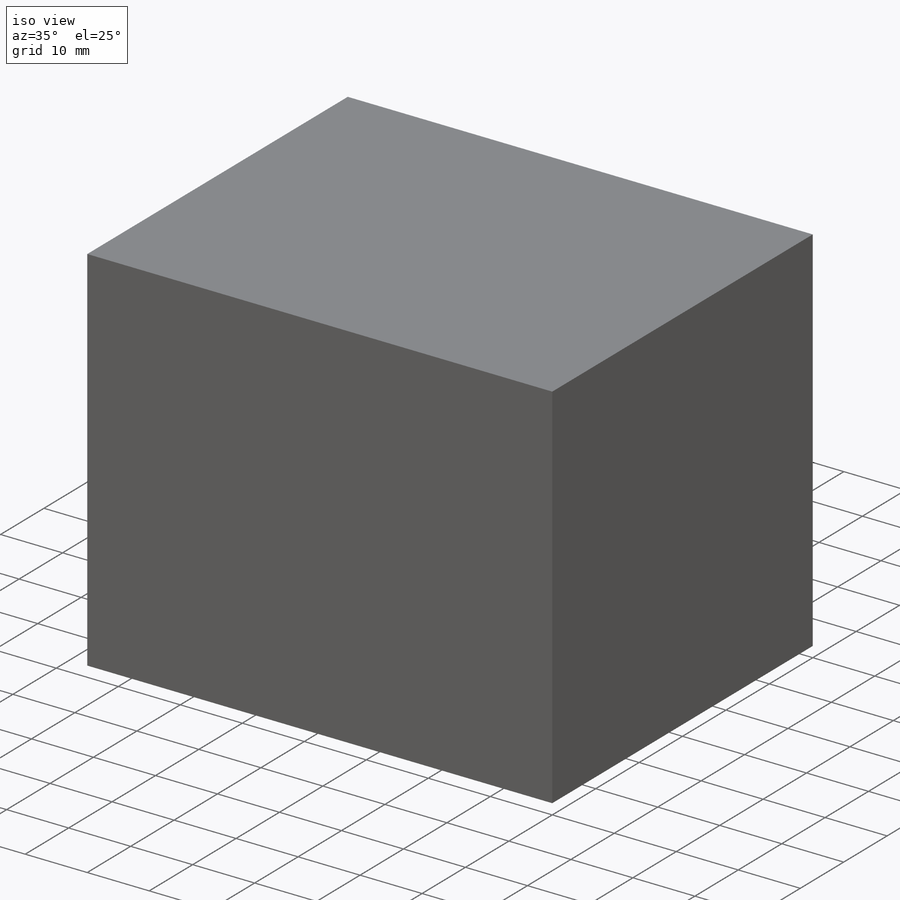
[diagram: iso view]
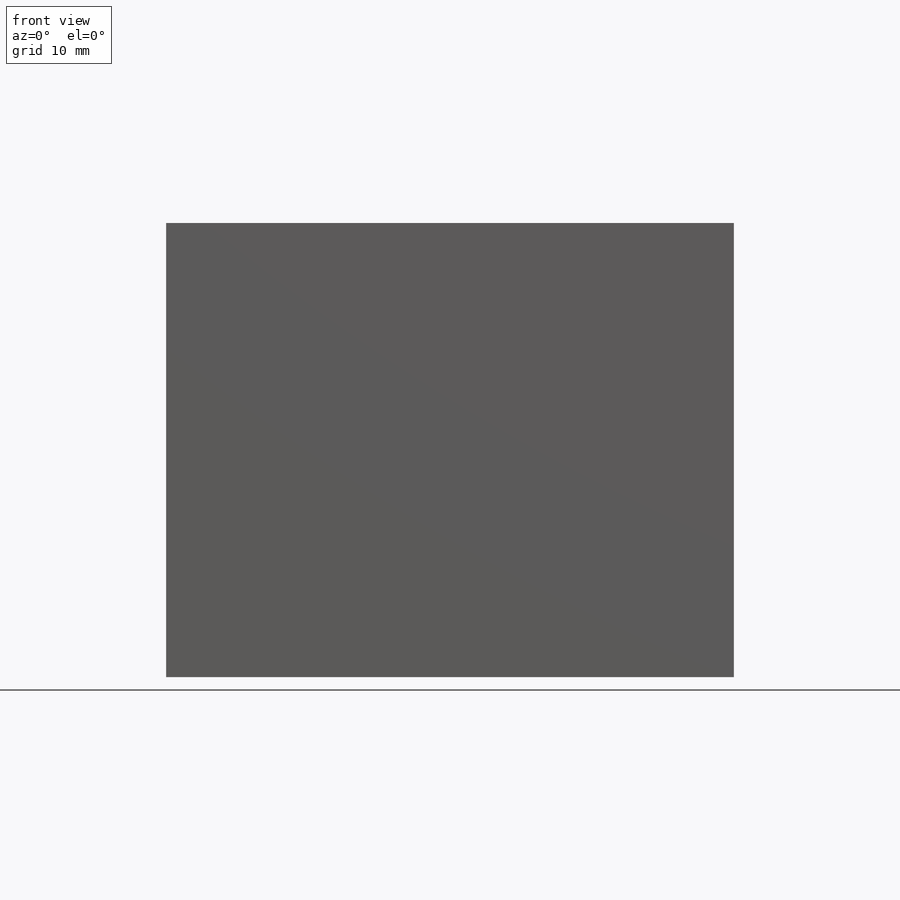
[diagram: front view]
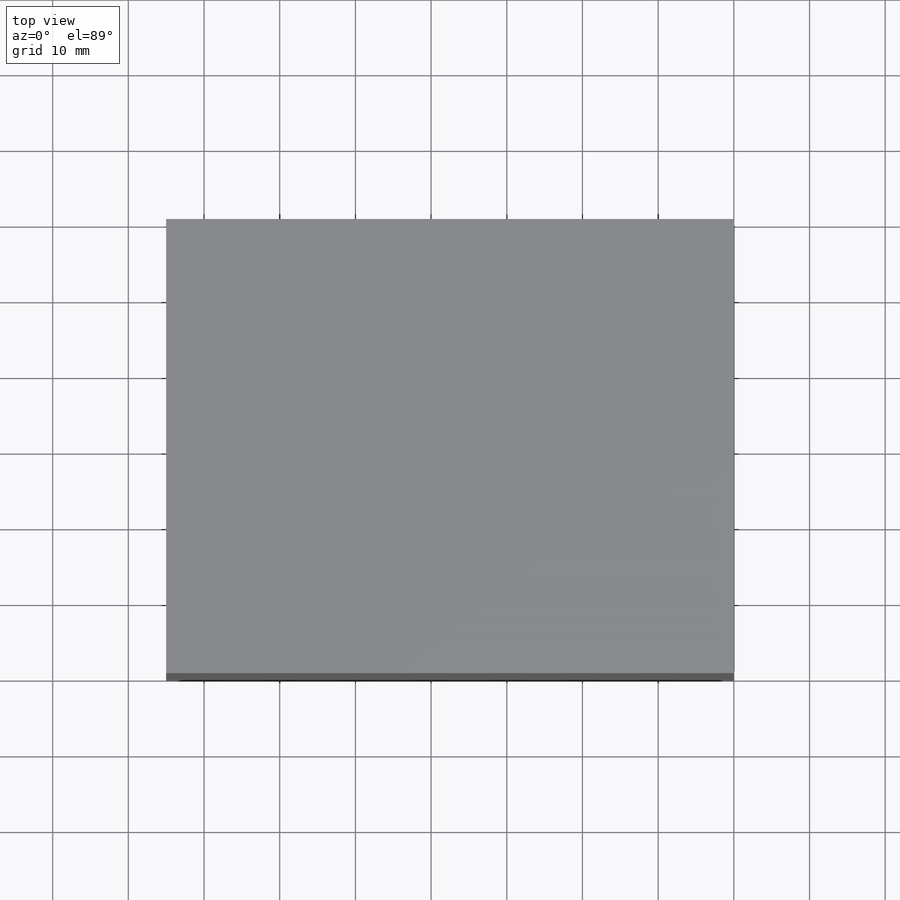
[diagram: top view]
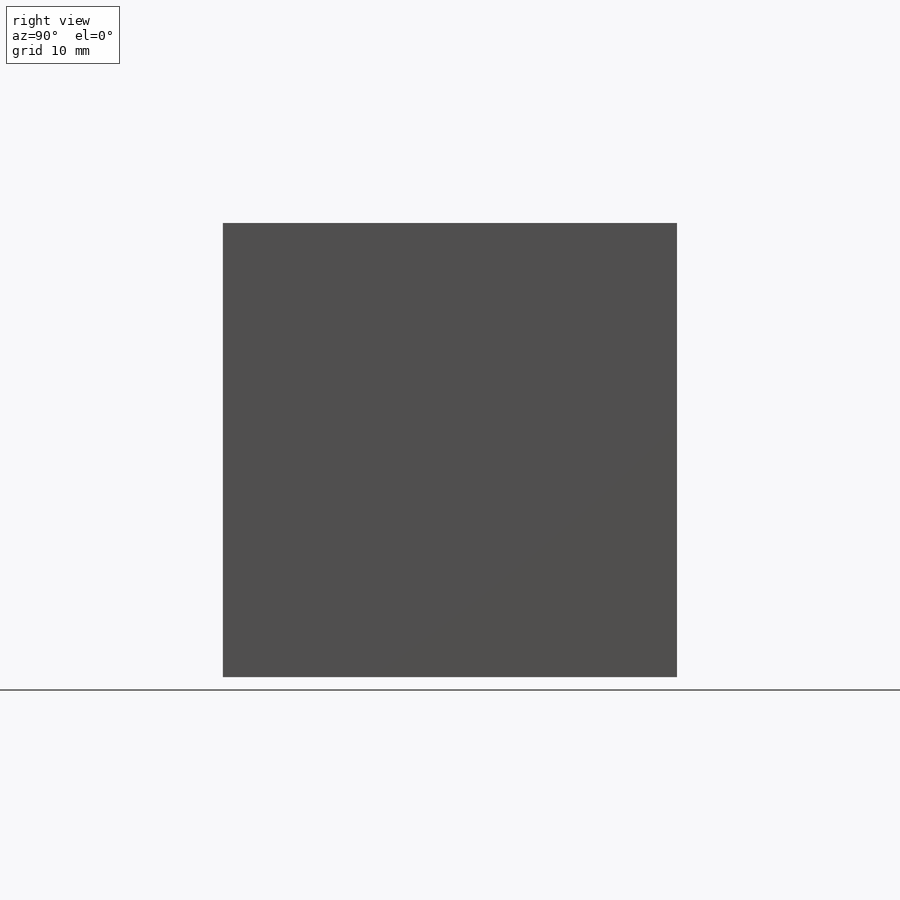
[diagram: right view]
SOLIDWORKS PART (.sldprt)
format: sldprt  version: not decoded by parser v0  size: 193,536 bytes
history: native  units: mm
features: sketch x4, plane x3, cut_extrude x3, material x1, extrude x1, fillet x1 (+9 scaffold rows collapsed)
feature tree (22):
  scaffold x9  (default folders/planes/origin — collapsed)
  material  "Materiał <nieokreślony>"
  plane  "Płaszczyzna przednia"
  plane  "Płaszczyzna górna"
  plane  "Płaszczyzna prawa"
  sketch  "Szkic1"  dims[D1=500.0mm D2=60.0mm]
  extrude  "Dodanie-wyciągnięcie1"  Depth=60mm
  sketch  "Szkic2"  dims[D1=50.0mm D2=50.0mm D3=50.0mm D4=50.0mm D5=50.0mm D6=50.0mm D7=50.0mm]
  cut_extrude  "Wytnij-wyciągnięcie1"  Depth=25mm
  fillet  "Zaokrąglenie2"  Radius=25mm
  sketch  "Szkic5"
  cut_extrude  "Wytnij-wyciągnięcie2"  Depth=400mm
  sketch  "Szkic6"
  cut_extrude  "Wytnij-wyciągnięcie4"  Depth=25mm
decode coverage: 7 of 9 modeling features carry decoded parameters
note: suppression state not decoded; provenance and decode notes live in map.json
